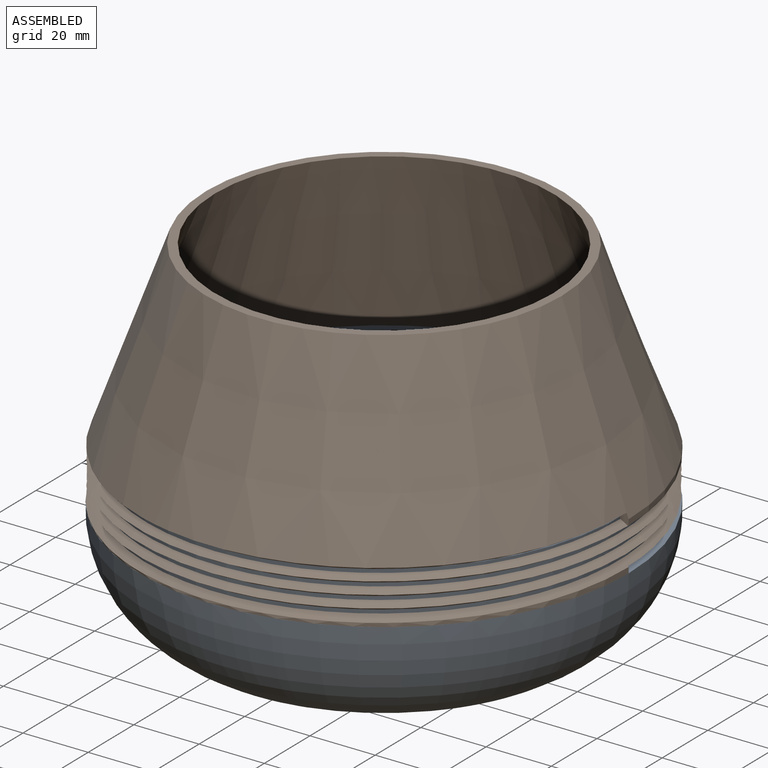
[diagram: assembled view]
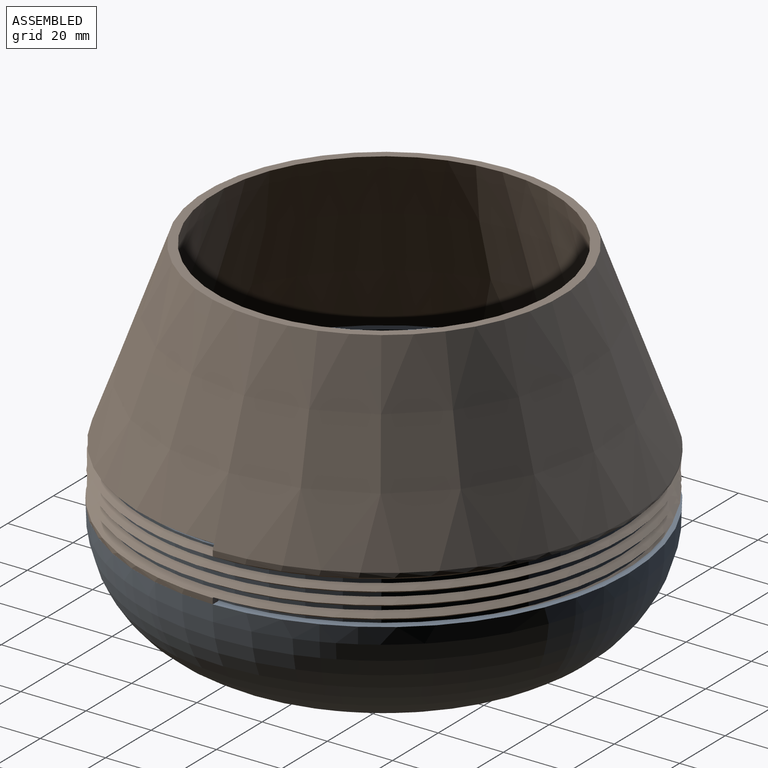
[diagram: assembled view, second angle]
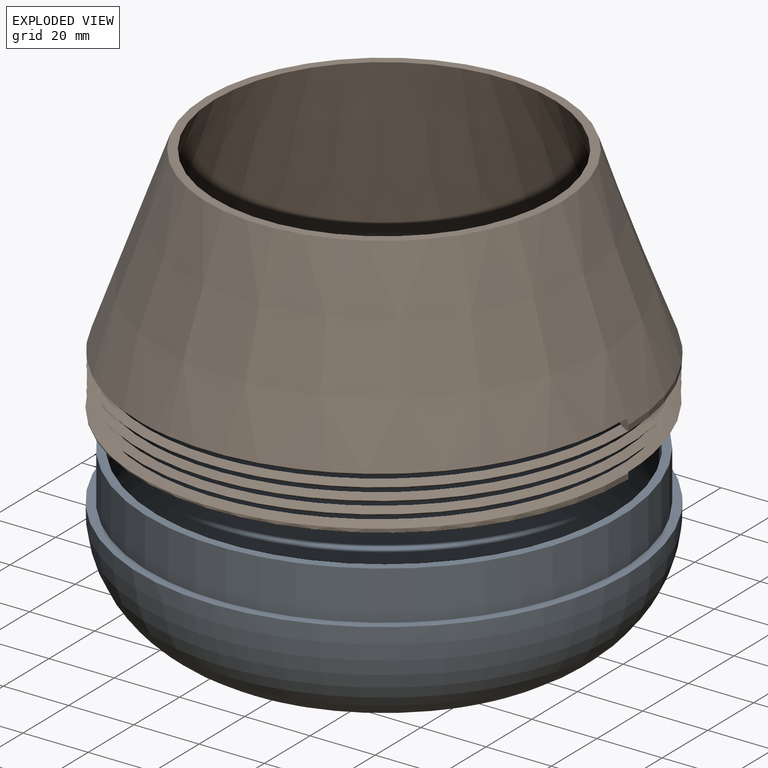
[diagram: exploded view]
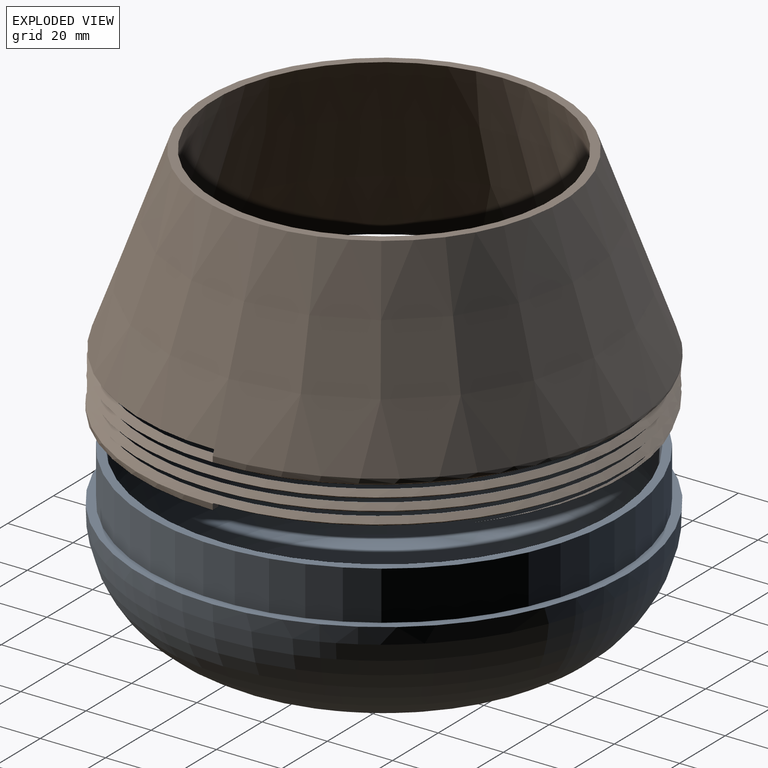
[diagram: exploded view, second angle]
ASSEMBLY  parts=2 mates=2
PART A: 9 faces, bbox 162.4x162.4x51.5 mm
  f0: cylinder r=72.4mm len=144.8mm, axis (0,0,-1), area 6823.5mm2, adj f1,f4
  f1: plane 144.8x144.8mm, normal (0,0,1), area 1117.6mm2, adj f0,f5
  f2: plane 100.64x100.64mm, normal (0,0,-1), area 7954.6mm2, adj f3
  f3: torus R=40.02mm, axis (0,0,-1), area 19287.6mm2, adj f2,f4
  f4: plane 150x150mm, normal (0,0,1), area 1204mm2, adj f0,f3
  f5: cylinder r=69.9mm len=139.8mm, axis (0,0,-1), area 7685.9mm2, adj f1,f8
  f6: plane 99.87x99.87mm, normal (0,0,1), area 7833.9mm2, adj f7
  f7: torus R=40.02mm, axis (0,0,-1), area 16194.9mm2, adj f6,f8
  f8: plane 145.04x145.04mm, normal (0,0,-1), area 1172mm2, adj f5,f7
PART B: 13 faces, bbox 152.2x175.4x75.4 mm
  f0: cylinder r=75mm len=148.21mm, axis (0,0,1), area 191.8mm2, adj f1,f7,f11
  f1: cone r=75mm half-angle=20deg, axis (0,0,-1), area 24185.2mm2, adj f0,f4,f7,f11,f12
  f2: cone r=72.65mm half-angle=20deg, axis (0,0,-1), area 23563.7mm2, adj f4,f6,f11,f12
  f3: cylinder r=75mm len=148.21mm, axis (0,0,1), area 191.8mm2, adj f5,f8,f9
  f4: plane 108.96x108.96mm, normal (0,0,1), area 888.4mm2, adj f1,f2
  f5: plane 151.94x150.33mm, normal (0,0,-1), area 762.3mm2, adj f3,f6,f8,f9,f10
  f6: cylinder r=72.5mm len=145mm, axis (0,0,1), area 4746.7mm2, adj f2,f5,f9,f10,f11,f12
  f7: bspline ~151.55x150mm, area 66.2mm2, adj f0,f1,f11,f12
  f8: bspline ~150x86.6mm, area 56.8mm2, adj f3,f5,f9,f10
  f9: plane 2.5x1.88mm, normal (0,1,0), area 3.2mm2, adj f3,f5,f6,f8,f12
  f10: bspline ~172.71x149.57mm, area 4485.2mm2, adj f5,f6,f8,f11,f12
  f11: plane 3.53x2.8mm, normal (0,-1,0), area 5.9mm2, adj f0,f1,f2,f6,f7,f10,f12
  f12: bspline ~172.71x149.57mm, area 4868.6mm2, adj f1,f2,f6,f7,f9,f10,f11
PLACE A t=(2.64,137.23,174.19)mm
PLACE B t=(2.64,137.23,183.53)mm
MATE parallel A.f0 <-> B.f5  axis (0,0,1) through (2.64,137.23,174.19)mm
MATE slider B.f0 <-> A.f0  axis (0,0,1) through (2.64,137.23,245.57)mm
